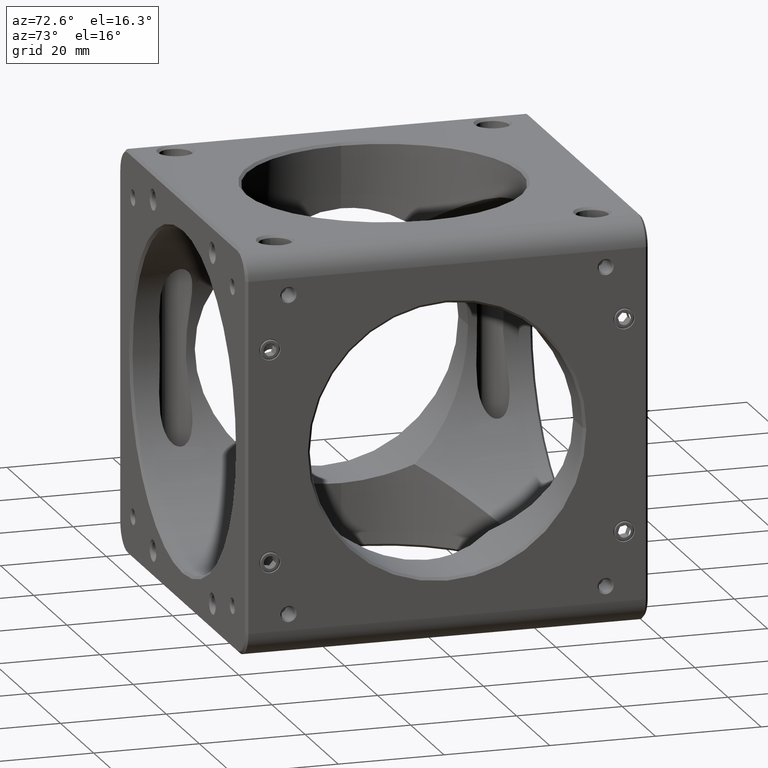
[diagram: clean part render]
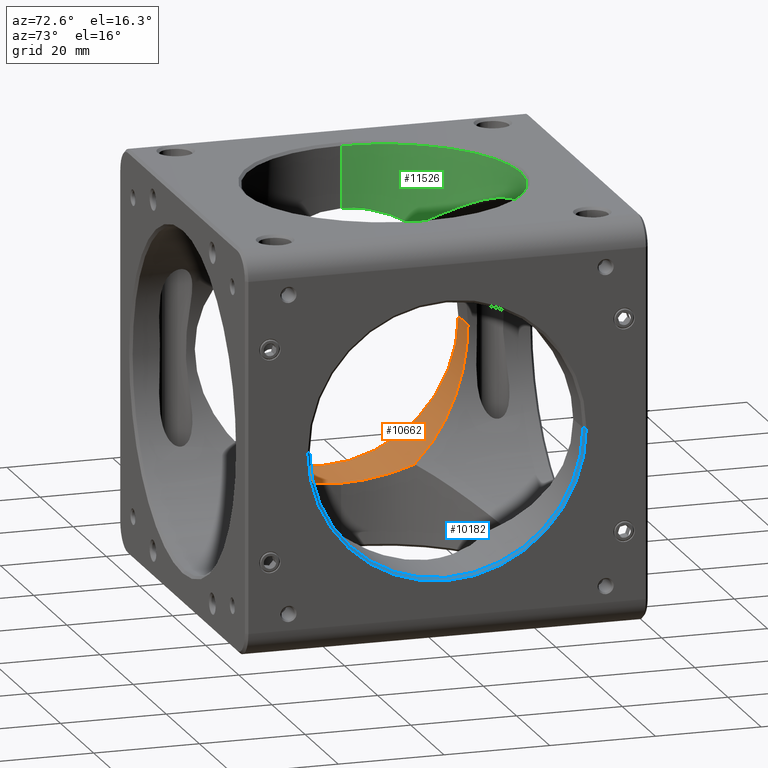
[diagram: same view with three faces highlighted in distinct colors, each labeled with its STEP entity id]
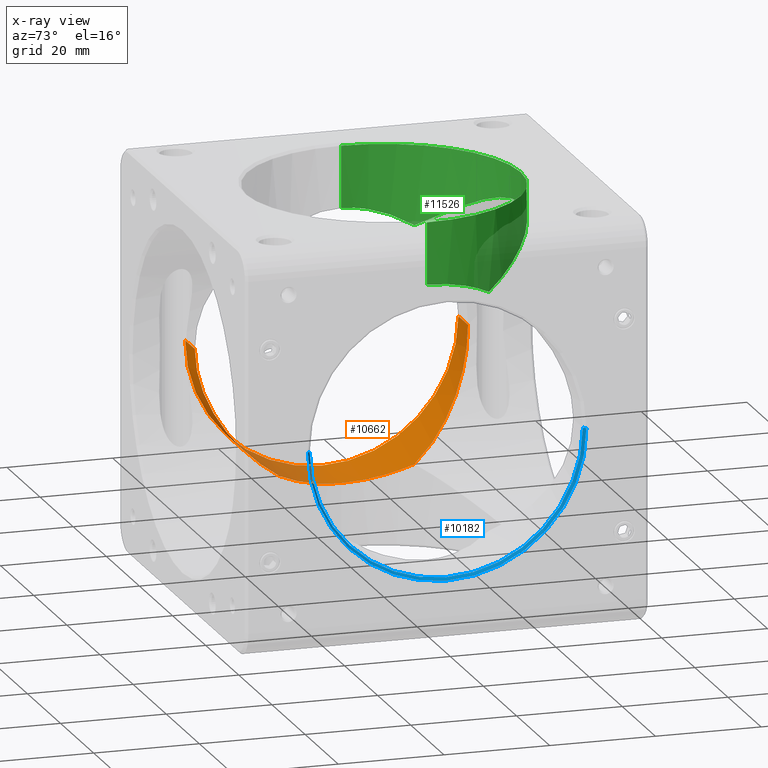
[diagram: x-ray of the same camera — body ghosted, the three highlighted faces saturated]
A machine part, auxiliary view with three faces highlighted in distinct colors.
The next image is the same camera in x-ray (body ghosted, the three faces saturated) — at least one of them is partly hidden behind the body in this view.
Their STEP definitions:

[orange] entity #10662 — the highlighted cylindrical surface (partial cylindrical patch) has radius 25.845 mm, axis along (1, 0, -0).
#14 = CARTESIAN_POINT ( 'NONE',  ( -29.80108422584668659, 23.40997574174339135, -10.96698080182598112 ) ) ;
#48 = EDGE_LOOP ( 'NONE', ( #6902, #9563, #1990, #595, #2496, #9173, #6217 ) ) ;
#51 = CARTESIAN_POINT ( 'NONE',  ( -37.60000000000003695, 25.84499999999998465, 3.195715822375015789E-15 ) ) ;
#253 = DIRECTION ( 'NONE',  ( 1.000000000000000000, 8.673617379884035472E-17, -0.0000000000000000000 ) ) ;
#281 = CARTESIAN_POINT ( 'NONE',  ( -25.84499999999999886, 4.515833756748953931, -25.84499999999998820 ) ) ;
#595 = ORIENTED_EDGE ( 'NONE', *, *, #5401, .T. ) ;
#774 = CARTESIAN_POINT ( 'NONE',  ( -26.80973857901472712, -19.46480864409625866, -17.03788305689619875 ) ) ;
#806 = CARTESIAN_POINT ( 'NONE',  ( -25.18910616588382823, 17.16694512655780969, -19.35021325873607267 ) ) ;
#817 = CARTESIAN_POINT ( 'NONE',  ( -26.28272207003479366, -18.73471214525936901, -17.83618791906743795 ) ) ;
#850 = CARTESIAN_POINT ( 'NONE',  ( -26.00364790434512940, 18.33491428855539240, -18.22327155906781471 ) ) ;
#972 = CARTESIAN_POINT ( 'NONE',  ( -31.06644955921520079, 25.00070451750736211, -6.578407921043935680 ) ) ;
#1035 = CARTESIAN_POINT ( 'NONE',  ( -25.84499999999999886, 0.0000000000000000000, -25.84499999999999886 ) ) ;
#1238 = CARTESIAN_POINT ( 'NONE',  ( -24.68778618224969179, 8.880877937350248885, -24.68778618224968469 ) ) ;
#1418 = EDGE_CURVE ( 'NONE', #10322, #5005, #10459, .T. ) ;
#1730 = CARTESIAN_POINT ( 'NONE',  ( -23.82094039402874230, -15.08136054625944311, -20.99539799501648574 ) ) ;
#1767 = CARTESIAN_POINT ( 'NONE',  ( -31.61007973371322777, 25.67296567477916369, -3.038372077861752452 ) ) ;
#1771 = EDGE_CURVE ( 'NONE', #6288, #5005, #5755, .T. ) ;
#1810 = CARTESIAN_POINT ( 'NONE',  ( -31.66236180193077132, 25.73727464214328364, -2.434445971920906615 ) ) ;
#1819 = CARTESIAN_POINT ( 'NONE',  ( -23.54194936592342202, -14.63739631445126399, -21.30735268938193627 ) ) ;
#1851 = CARTESIAN_POINT ( 'NONE',  ( -30.67443486768114624, 24.51244851248882384, -8.275898834087531242 ) ) ;
#1929 = CARTESIAN_POINT ( 'NONE',  ( -27.06500120650670738, 19.81084546910653899, -16.60709438983511887 ) ) ;
#1990 = ORIENTED_EDGE ( 'NONE', *, *, #6218, .T. ) ;
#2113 = CARTESIAN_POINT ( 'NONE',  ( -38.10000000000001563, 25.84499999999998465, 0.0000000000000000000 ) ) ;
#2203 = EDGE_CURVE ( 'NONE', #12131, #10322, #5366, .T. ) ;
#2496 = ORIENTED_EDGE ( 'NONE', *, *, #2203, .T. ) ;
#2613 = CARTESIAN_POINT ( 'NONE',  ( -38.10000000000001563, -25.84500000000001307, 3.165099652396334369E-15 ) ) ;
#2679 = CARTESIAN_POINT ( 'NONE',  ( -31.20369507796947062, -25.17160488747299851, -5.979155974851310340 ) ) ;
#2710 = CARTESIAN_POINT ( 'NONE',  ( -31.74557741855164750, 25.83956752821650582, -0.6113074955970804192 ) ) ;
#2843 = CARTESIAN_POINT ( 'NONE',  ( -30.35794380151485683, -24.11614080498363322, -9.365305828089397266 ) ) ;
#3095 = B_SPLINE_CURVE_WITH_KNOTS ( 'NONE', 3,
 ( #5564, #9359, #3751, #11220, #7516, #7437, #2679, #11262, #2843, #3791, #11177, #10179, #11140, #774, #817, #12117, #7352, #1730, #1819, #5515, #12070, #7390 ),
 .UNSPECIFIED., .F., .F.,
 ( 4, 2, 2, 2, 2, 2, 2, 2, 2, 2, 4 ),
 ( 0.08587225816773699782, 0.08767525058464645249, 0.08947824300155589328, 0.09308422783537478873, 0.09669021266919368418, 0.1002961975030125796, 0.1039021823368314751, 0.1075081671706503705, 0.1111141520044692660, 0.1129171444213787207, 0.1147201368382881614 ),
 .UNSPECIFIED. ) ;
#3223 = VERTEX_POINT ( 'NONE', #8005 ) ;
#3557 = CIRCLE ( 'NONE', #10423, 25.84499999999999886 ) ;
#3665 = CARTESIAN_POINT ( 'NONE',  ( -31.75000000000000000, 25.84499999999998465, 0.0000000000000000000 ) ) ;
#3751 = CARTESIAN_POINT ( 'NONE',  ( -31.73286768351305653, -25.82396237325450272, -1.206957470206748706 ) ) ;
#3791 = CARTESIAN_POINT ( 'NONE',  ( -29.62360340340134357, -23.18493851775056669, -11.47849408709906882 ) ) ;
#3872 = CARTESIAN_POINT ( 'NONE',  ( -22.45064030267286626, 12.80362351055353543, -22.45064030267289468 ) ) ;
#3901 = CARTESIAN_POINT ( 'NONE',  ( -22.45064030267287691, -12.80362351055358161, -22.45064030267288047 ) ) ;
#3984 = CARTESIAN_POINT ( 'NONE',  ( -25.84500000000000242, -4.515833756748983241, -25.84499999999999176 ) ) ;
#3994 = CARTESIAN_POINT ( 'NONE',  ( -26.27367877284450870, 18.71559830637246336, -17.83228939034581373 ) ) ;
#4245 = CARTESIAN_POINT ( 'NONE',  ( -38.10000000000001563, -1.354819034737886499E-14, 0.0000000000000000000 ) ) ;
#4283 = DIRECTION ( 'NONE',  ( 0.0000000000000000000, 1.000000000000000000, 0.0000000000000000000 ) ) ;
#4612 = CARTESIAN_POINT ( 'NONE',  ( -31.47131118450240095, 25.50191078014481860, -4.240921831801783171 ) ) ;
#4625 = VERTEX_POINT ( 'NONE', #11631 ) ;
#4765 = CARTESIAN_POINT ( 'NONE',  ( -24.68778618224968469, -8.880877937350282636, -24.68778618224967758 ) ) ;
#4949 = CARTESIAN_POINT ( 'NONE',  ( -25.84499999999999886, 0.0000000000000000000, -25.84499999999999886 ) ) ;
#4991 = CARTESIAN_POINT ( 'NONE',  ( -22.45064030267286626, 12.80362351055353543, -22.45064030267289468 ) ) ;
#5005 = VERTEX_POINT ( 'NONE', #7149 ) ;
#5366 =( BOUNDED_CURVE ( )  B_SPLINE_CURVE ( 3, ( #4949, #281, #1238, #4991 ),
 .UNSPECIFIED., .F., .F. ) 
 B_SPLINE_CURVE_WITH_KNOTS ( ( 4, 4 ),
 ( 3.141592653589793116, 3.659888369675483144 ),
 .UNSPECIFIED. ) 
 CURVE ( )  GEOMETRIC_REPRESENTATION_ITEM ( )  RATIONAL_B_SPLINE_CURVE ( ( 1.000000000000000000, 0.9777391309083933724, 0.9777391309083933724, 1.000000000000000000 ) ) 
 REPRESENTATION_ITEM ( '' )  );
#5401 = EDGE_CURVE ( 'NONE', #4625, #12131, #8575, .T. ) ;
#5515 = CARTESIAN_POINT ( 'NONE',  ( -22.99056129754822209, -13.73302223456043869, -21.90115864060829765 ) ) ;
#5564 = CARTESIAN_POINT ( 'NONE',  ( -31.75000000000000000, -25.84500000000001307, 3.165099907590964847E-15 ) ) ;
#5699 = EDGE_CURVE ( 'NONE', #9313, #3223, #6657, .T. ) ;
#5755 = LINE ( 'NONE', #2113, #10436 ) ;
#5864 = CYLINDRICAL_SURFACE ( 'NONE', #11641, 25.84499999999999886 ) ;
#6217 = ORIENTED_EDGE ( 'NONE', *, *, #1771, .F. ) ;
#6218 = EDGE_CURVE ( 'NONE', #3223, #4625, #3095, .T. ) ;
#6268 = DIRECTION ( 'NONE',  ( 1.000000000000000000, 8.673617379884035472E-17, -0.0000000000000000000 ) ) ;
#6288 = VERTEX_POINT ( 'NONE', #51 ) ;
#6603 = CARTESIAN_POINT ( 'NONE',  ( -22.98737391121697726, 13.74476436601895024, -21.91390669412879078 ) ) ;
#6657 = LINE ( 'NONE', #2613, #11805 ) ;
#6902 = ORIENTED_EDGE ( 'NONE', *, *, #8497, .T. ) ;
#7149 = CARTESIAN_POINT ( 'NONE',  ( -31.75000000000000000, 25.84499999999998465, 0.0000000000000000000 ) ) ;
#7352 = CARTESIAN_POINT ( 'NONE',  ( -24.65294639730725379, -16.37388560330456855, -20.02549591974057108 ) ) ;
#7379 = CARTESIAN_POINT ( 'NONE',  ( -28.97706381268278975, 22.35188379087410837, -12.98731663105711576 ) ) ;
#7390 = CARTESIAN_POINT ( 'NONE',  ( -22.45064030267287691, -12.80362351055358161, -22.45064030267288047 ) ) ;
#7425 = CARTESIAN_POINT ( 'NONE',  ( -30.35605748890128908, 24.11379323212142012, -9.372269175873704228 ) ) ;
#7437 = CARTESIAN_POINT ( 'NONE',  ( -31.40558761019100231, -25.42090096508790609, -4.815888421346260273 ) ) ;
#7469 = CARTESIAN_POINT ( 'NONE',  ( -23.53702289668455805, 14.63974223041835465, -21.32568318022507015 ) ) ;
#7509 = CARTESIAN_POINT ( 'NONE',  ( -24.63779543599862265, 16.35088895687803046, -20.04383311635460174 ) ) ;
#7516 = CARTESIAN_POINT ( 'NONE',  ( -31.61108539494519931, -25.67420265130689572, -3.026893417440124523 ) ) ;
#7546 = CARTESIAN_POINT ( 'NONE',  ( -31.18283235845020940, 25.14509912831195848, -6.003727197645441827 ) ) ;
#8005 = CARTESIAN_POINT ( 'NONE',  ( -31.75000000000000000, -25.84500000000001307, 3.165099907590964847E-15 ) ) ;
#8145 = DIRECTION ( 'NONE',  ( 1.000000000000000000, 8.673617379884035472E-17, -0.0000000000000000000 ) ) ;
#8254 = CARTESIAN_POINT ( 'NONE',  ( -37.60000000000003695, -1.350482226047944481E-14, 0.0000000000000000000 ) ) ;
#8321 = CARTESIAN_POINT ( 'NONE',  ( -31.72799318232459598, 25.81796110822155654, -1.220586381127175546 ) ) ;
#8400 = CARTESIAN_POINT ( 'NONE',  ( -31.38517527013375741, 25.39559416541459669, -4.835757171523686893 ) ) ;
#8481 = CARTESIAN_POINT ( 'NONE',  ( -29.19234530911510106, 22.63011369529780126, -12.49666064361249518 ) ) ;
#8489 = FACE_OUTER_BOUND ( 'NONE', #48, .T. ) ;
#8497 = EDGE_CURVE ( 'NONE', #6288, #9313, #3557, .T. ) ;
#8575 =( BOUNDED_CURVE ( )  B_SPLINE_CURVE ( 3, ( #3901, #4765, #3984, #11323 ),
 .UNSPECIFIED., .F., .F. ) 
 B_SPLINE_CURVE_WITH_KNOTS ( ( 4, 4 ),
 ( 2.623296937504102200, 3.141592653589793116 ),
 .UNSPECIFIED. ) 
 CURVE ( )  GEOMETRIC_REPRESENTATION_ITEM ( )  RATIONAL_B_SPLINE_CURVE ( ( 1.000000000000000000, 0.9777391309083932613, 0.9777391309083932613, 1.000000000000000000 ) ) 
 REPRESENTATION_ITEM ( '' )  );
#9173 = ORIENTED_EDGE ( 'NONE', *, *, #1418, .T. ) ;
#9269 = CARTESIAN_POINT ( 'NONE',  ( -26.80500198953824764, 19.45444821540877101, -17.02317859568271530 ) ) ;
#9313 = VERTEX_POINT ( 'NONE', #10694 ) ;
#9359 = CARTESIAN_POINT ( 'NONE',  ( -31.74999999999999289, -25.84500000000000952, -0.6024649619294979441 ) ) ;
#9392 = CARTESIAN_POINT ( 'NONE',  ( -28.30610231338615890, 21.47735505972951486, -14.42010935265777505 ) ) ;
#9563 = ORIENTED_EDGE ( 'NONE', *, *, #5699, .T. ) ;
#9596 = CARTESIAN_POINT ( 'NONE',  ( -31.71483148227369853, 25.80178709859464803, -1.524552251522689694 ) ) ;
#10179 = CARTESIAN_POINT ( 'NONE',  ( -28.31275796880968798, -21.48615325696285794, -14.40750770714116413 ) ) ;
#10322 = VERTEX_POINT ( 'NONE', #3872 ) ;
#10330 = CARTESIAN_POINT ( 'NONE',  ( -29.60405805035386706, 23.15878395478078744, -11.48735386586078633 ) ) ;
#10423 = AXIS2_PLACEMENT_3D ( 'NONE', #8254, #10466, #10554 ) ;
#10436 = VECTOR ( 'NONE', #253, 1000.000000000000000 ) ;
#10459 = B_SPLINE_CURVE_WITH_KNOTS ( 'NONE', 3,
 ( #11252, #6603, #7469, #7509, #806, #850, #3994, #9269, #1929, #12105, #9392, #7379, #8481, #10330, #14, #7425, #1851, #972, #7546, #8400, #4612, #1767, #1810, #9596, #8321, #2710, #10540, #3665 ),
 .UNSPECIFIED., .F., .F.,
 ( 4, 2, 2, 2, 2, 2, 2, 2, 2, 2, 2, 2, 2, 4 ),
 ( 0.1426913864351759265, 0.1462891665683608566, 0.1498869467015457591, 0.1516858367681382103, 0.1534847268347306892, 0.1570825069679155916, 0.1588813970345080151, 0.1606802871011004663, 0.1642780672342853687, 0.1660769573008778199, 0.1678758473674702434, 0.1696747374340626946, 0.1705741824673589202, 0.1714736275006551458 ),
 .UNSPECIFIED. ) ;
#10466 = DIRECTION ( 'NONE',  ( -1.000000000000000000, -8.673617379883828396E-17, -0.0000000000000000000 ) ) ;
#10540 = CARTESIAN_POINT ( 'NONE',  ( -31.75000000000000711, 25.84499999999999531, -0.3048629228592948937 ) ) ;
#10554 = DIRECTION ( 'NONE',  ( 0.0000000000000000000, 1.000000000000000000, 0.0000000000000000000 ) ) ;
#10662 = ADVANCED_FACE ( 'NONE', ( #8489 ), #5864, .F. ) ;
#10694 = CARTESIAN_POINT ( 'NONE',  ( -37.60000000000003695, -25.84500000000001307, 0.0000000000000000000 ) ) ;
#11140 = CARTESIAN_POINT ( 'NONE',  ( -27.82349198793041012, -20.83898748208756402, -15.32660547326618250 ) ) ;
#11177 = CARTESIAN_POINT ( 'NONE',  ( -29.21155924178200181, -22.65739859995933614, -12.48492486143143054 ) ) ;
#11220 = CARTESIAN_POINT ( 'NONE',  ( -31.66346026858231255, -25.73862578724838812, -2.420107760853800638 ) ) ;
#11252 = CARTESIAN_POINT ( 'NONE',  ( -22.45064030267286626, 12.80362351055353543, -22.45064030267289468 ) ) ;
#11262 = CARTESIAN_POINT ( 'NONE',  ( -30.68132924100104120, -24.52107399945737143, -8.250874420071514947 ) ) ;
#11323 = CARTESIAN_POINT ( 'NONE',  ( -25.84499999999999886, 0.0000000000000000000, -25.84499999999999886 ) ) ;
#11631 = CARTESIAN_POINT ( 'NONE',  ( -22.45064030267287691, -12.80362351055358161, -22.45064030267288047 ) ) ;
#11641 = AXIS2_PLACEMENT_3D ( 'NONE', #4245, #6268, #4283 ) ;
#11805 = VECTOR ( 'NONE', #8145, 1000.000000000000000 ) ;
#12070 = CARTESIAN_POINT ( 'NONE',  ( -22.71814682871328017, -13.27268547491082451, -22.18313377663247010 ) ) ;
#12105 = CARTESIAN_POINT ( 'NONE',  ( -27.82534590997393664, 20.84146183884763204, -15.32325430562022106 ) ) ;
#12117 = CARTESIAN_POINT ( 'NONE',  ( -25.20439476490140862, -17.18922555614487280, -19.33001716062330644 ) ) ;
#12131 = VERTEX_POINT ( 'NONE', #1035 ) ;

[blue] entity #10182 — the highlighted conical surface has half-angle 45 deg.
#260 = CARTESIAN_POINT ( 'NONE',  ( 37.59999999999998721, -6.982261990806649344E-15, 0.0000000000000000000 ) ) ;
#286 = LINE ( 'NONE', #1519, #10002 ) ;
#433 = AXIS2_PLACEMENT_3D ( 'NONE', #9113, #11016, #7344 ) ;
#477 = EDGE_CURVE ( 'NONE', #4038, #5488, #3224, .T. ) ;
#627 = AXIS2_PLACEMENT_3D ( 'NONE', #260, #10534, #9514 ) ;
#895 = EDGE_CURVE ( 'NONE', #3083, #4038, #4807, .T. ) ;
#993 = ORIENTED_EDGE ( 'NONE', *, *, #895, .F. ) ;
#1519 = CARTESIAN_POINT ( 'NONE',  ( 37.59999999999998721, -25.84500000000000597, 3.165099652396334369E-15 ) ) ;
#1537 = DIRECTION ( 'NONE',  ( 0.0000000000000000000, 1.000000000000000000, 0.0000000000000000000 ) ) ;
#2033 = AXIS2_PLACEMENT_3D ( 'NONE', #3447, #11954, #1537 ) ;
#2383 = ORIENTED_EDGE ( 'NONE', *, *, #11825, .F. ) ;
#3083 = VERTEX_POINT ( 'NONE', #5840 ) ;
#3218 = CARTESIAN_POINT ( 'NONE',  ( 38.10000000000000853, -26.34500000000001663, 3.226331992353703521E-15 ) ) ;
#3224 = CIRCLE ( 'NONE', #433, 26.34500000000000242 ) ;
#3258 = CONICAL_SURFACE ( 'NONE', #2033, 25.84499999999999886, 0.7853981633974415066 ) ;
#3447 = CARTESIAN_POINT ( 'NONE',  ( 37.59999999999998721, -6.982261990806649344E-15, 0.0000000000000000000 ) ) ;
#4038 = VERTEX_POINT ( 'NONE', #11782 ) ;
#4685 = VERTEX_POINT ( 'NONE', #8957 ) ;
#4807 = LINE ( 'NONE', #11776, #7872 ) ;
#4963 = CIRCLE ( 'NONE', #627, 25.84499999999999886 ) ;
#5488 = VERTEX_POINT ( 'NONE', #3218 ) ;
#5534 = EDGE_LOOP ( 'NONE', ( #2383, #8082, #10055, #993 ) ) ;
#5840 = CARTESIAN_POINT ( 'NONE',  ( 37.59999999999998721, 25.84499999999999176, 0.0000000000000000000 ) ) ;
#6271 = DIRECTION ( 'NONE',  ( 0.7071067811865525687, -0.7071067811865425767, 8.659560562354873694E-17 ) ) ;
#7344 = DIRECTION ( 'NONE',  ( 2.633856103210183447E-16, -1.000000000000000000, 0.0000000000000000000 ) ) ;
#7872 = VECTOR ( 'NONE', #11816, 1000.000000000000114 ) ;
#8082 = ORIENTED_EDGE ( 'NONE', *, *, #9126, .T. ) ;
#8957 = CARTESIAN_POINT ( 'NONE',  ( 37.59999999999998721, -25.84500000000000597, 3.195715822375018550E-15 ) ) ;
#9102 = FACE_OUTER_BOUND ( 'NONE', #5534, .T. ) ;
#9113 = CARTESIAN_POINT ( 'NONE',  ( 38.10000000000000142, -6.938893903907227589E-15, 0.0000000000000000000 ) ) ;
#9126 = EDGE_CURVE ( 'NONE', #4685, #5488, #286, .T. ) ;
#9514 = DIRECTION ( 'NONE',  ( 0.0000000000000000000, -1.000000000000000000, 0.0000000000000000000 ) ) ;
#10002 = VECTOR ( 'NONE', #6271, 1000.000000000000000 ) ;
#10055 = ORIENTED_EDGE ( 'NONE', *, *, #477, .F. ) ;
#10182 = ADVANCED_FACE ( 'NONE', ( #9102 ), #3258, .F. ) ;
#10534 = DIRECTION ( 'NONE',  ( 1.000000000000000000, 8.673617379883977540E-17, 0.0000000000000000000 ) ) ;
#11016 = DIRECTION ( 'NONE',  ( -1.000000000000000000, -1.821231995776175479E-16, 0.0000000000000000000 ) ) ;
#11776 = CARTESIAN_POINT ( 'NONE',  ( 37.59999999999998721, 25.84499999999999176, 0.0000000000000000000 ) ) ;
#11782 = CARTESIAN_POINT ( 'NONE',  ( 38.09999999999999432, 26.34499999999999531, 0.0000000000000000000 ) ) ;
#11816 = DIRECTION ( 'NONE',  ( 0.7071067811865522357, 0.7071067811865426878, 0.0000000000000000000 ) ) ;
#11825 = EDGE_CURVE ( 'NONE', #4685, #3083, #4963, .T. ) ;
#11954 = DIRECTION ( 'NONE',  ( 1.000000000000000000, 8.673617379883977540E-17, 0.0000000000000000000 ) ) ;

[green] entity #11526 — the highlighted cylindrical surface (partial cylindrical patch) has radius 25.845 mm, axis along (-0, -0, -1).
#447 = CARTESIAN_POINT ( 'NONE',  ( -25.84499999999999886, 0.0000000000000000000, 38.10000000000000142 ) ) ;
#471 = AXIS2_PLACEMENT_3D ( 'NONE', #617, #10938, #4613 ) ;
#510 = ORIENTED_EDGE ( 'NONE', *, *, #2568, .T. ) ;
#596 = CARTESIAN_POINT ( 'NONE',  ( 0.0000000000000000000, 0.0000000000000000000, 37.60000000000006537 ) ) ;
#617 = CARTESIAN_POINT ( 'NONE',  ( 0.0000000000000000000, 0.0000000000000000000, 38.10000000000000142 ) ) ;
#654 = CARTESIAN_POINT ( 'NONE',  ( -7.688962224019891600, 24.68180839699524398, 30.81040016890560551 ) ) ;
#775 = CARTESIAN_POINT ( 'NONE',  ( 25.84500000000000597, 4.515833756748967254, 25.84500000000000242 ) ) ;
#893 = CARTESIAN_POINT ( 'NONE',  ( -0.6030113382820280199, 25.84500000000000242, 31.75000000000001421 ) ) ;
#1226 = CARTESIAN_POINT ( 'NONE',  ( 9.335434536426292951, 24.12805042232672648, 30.36739620683913898 ) ) ;
#1439 = CARTESIAN_POINT ( 'NONE',  ( 18.20368231813494475, 18.35431712406511195, 26.01734590773811817 ) ) ;
#1522 = CARTESIAN_POINT ( 'NONE',  ( 22.45064030267288757, 12.80362351055355674, 22.45064030267288757 ) ) ;
#1525 = EDGE_CURVE ( 'NONE', #1926, #10661, #2924, .T. ) ;
#1534 = CARTESIAN_POINT ( 'NONE',  ( -22.45064030267287691, 12.80362351055357450, 22.45064030267290178 ) ) ;
#1575 = CARTESIAN_POINT ( 'NONE',  ( -12.49420688565798265, 22.65198967103243177, 29.20738749243578525 ) ) ;
#1615 = VERTEX_POINT ( 'NONE', #4684 ) ;
#1761 = ORIENTED_EDGE ( 'NONE', *, *, #4381, .T. ) ;
#1926 = VERTEX_POINT ( 'NONE', #8179 ) ;
#2127 = CARTESIAN_POINT ( 'NONE',  ( 4.793307906017560072, 25.40366024744986007, 31.39170349068861299 ) ) ;
#2172 = CARTESIAN_POINT ( 'NONE',  ( 10.93046662764240118, 23.42704007858346316, 29.81449390638315222 ) ) ;
#2365 = VERTEX_POINT ( 'NONE', #9869 ) ;
#2389 = CARTESIAN_POINT ( 'NONE',  ( 20.02466232403845225, 16.37477505168650183, 24.65357233149532235 ) ) ;
#2568 = EDGE_CURVE ( 'NONE', #1615, #1926, #3632, .T. ) ;
#2712 = CARTESIAN_POINT ( 'NONE',  ( -1.206946209193123565, 25.82392270930590072, 31.73283547811145411 ) ) ;
#2924 = B_SPLINE_CURVE_WITH_KNOTS ( 'NONE', 3,
 ( #7866, #8812, #10713, #11532, #2127, #6860, #8687, #3091, #1226, #2172, #8723, #9682, #10625, #8984, #9896, #7146, #5147, #7996, #1439, #3318, #2389, #9021, #11783, #1522 ),
 .UNSPECIFIED., .F., .F.,
 ( 4, 2, 2, 2, 2, 2, 2, 2, 2, 2, 2, 4 ),
 ( 0.04304464871771874340, 0.04665974599763529629, 0.04846729463759356926, 0.05027484327755184917, 0.05388994055746840206, 0.05569748919742668197, 0.05750503783738495495, 0.06112013511730149395, 0.06292768375725975305, 0.06473523239721802602, 0.06835032967713454422, 0.07196542695705106241 ),
 .UNSPECIFIED. ) ;
#3091 = CARTESIAN_POINT ( 'NONE',  ( 8.238362102897522021, 24.52513167385252402, 30.68457724993902502 ) ) ;
#3311 = CARTESIAN_POINT ( 'NONE',  ( 22.45064030267288757, 12.80362351055355674, 22.45064030267288757 ) ) ;
#3318 = CARTESIAN_POINT ( 'NONE',  ( 19.32865632433934877, 17.19101503160560895, 25.20557273274066645 ) ) ;
#3373 = DIRECTION ( 'NONE',  ( -0.0000000000000000000, -0.0000000000000000000, -1.000000000000000000 ) ) ;
#3480 = CARTESIAN_POINT ( 'NONE',  ( -9.897202636066174009, 23.88191161807583285, 30.17322445336557024 ) ) ;
#3632 = B_SPLINE_CURVE_WITH_KNOTS ( 'NONE', 3,
 ( #1534, #9033, #6283, #5400, #4379, #10941, #10982, #5320, #11873, #6244, #7197, #1575, #8129, #3480, #4464, #5357, #654, #7234, #11021, #8366, #7470, #2712, #893, #3745 ),
 .UNSPECIFIED., .F., .F.,
 ( 4, 2, 2, 2, 2, 2, 2, 2, 2, 2, 2, 4 ),
 ( 0.01405118284760461730, 0.01767536608136888523, 0.02129954931513315664, 0.02311164093201528713, 0.02492373254889741763, 0.02854791578266168556, 0.03217209901642595349, 0.03398419063330808398, 0.03579628225019021448, 0.03942046548395448241, 0.04123255710083661291, 0.04304464871771874340 ),
 .UNSPECIFIED. ) ;
#3669 = EDGE_CURVE ( 'NONE', #11088, #2365, #7436, .T. ) ;
#3677 = CARTESIAN_POINT ( 'NONE',  ( 25.84499999999999886, 3.165099652396333975E-15, 25.84500000000000952 ) ) ;
#3745 = CARTESIAN_POINT ( 'NONE',  ( 4.961947715614647792E-20, 25.84499999999999886, 31.75000000000000711 ) ) ;
#3818 = ORIENTED_EDGE ( 'NONE', *, *, #3669, .T. ) ;
#4379 = CARTESIAN_POINT ( 'NONE',  ( -19.34288749091300375, 17.17494502539863888, 25.19460975910912381 ) ) ;
#4381 = EDGE_CURVE ( 'NONE', #12015, #11088, #9314, .T. ) ;
#4464 = CARTESIAN_POINT ( 'NONE',  ( -9.351178390692838960, 24.10111157733373943, 30.34711645161839044 ) ) ;
#4491 = ORIENTED_EDGE ( 'NONE', *, *, #1525, .T. ) ;
#4613 = DIRECTION ( 'NONE',  ( -1.000000000000000000, 0.0000000000000000000, 0.0000000000000000000 ) ) ;
#4670 = CYLINDRICAL_SURFACE ( 'NONE', #471, 25.84499999999999886 ) ;
#4684 = CARTESIAN_POINT ( 'NONE',  ( -22.45064030267287691, 12.80362351055357450, 22.45064030267290178 ) ) ;
#4799 = VECTOR ( 'NONE', #6116, 1000.000000000000000 ) ;
#4836 = CARTESIAN_POINT ( 'NONE',  ( -25.84499999999999886, 0.0000000000000000000, 37.60000000000006537 ) ) ;
#5132 = EDGE_LOOP ( 'NONE', ( #11305, #1761, #3818, #7385, #510, #4491, #6982 ) ) ;
#5147 = CARTESIAN_POINT ( 'NONE',  ( 17.00941972275156999, 19.46640336726955312, 26.81369516619455240 ) ) ;
#5215 = AXIS2_PLACEMENT_3D ( 'NONE', #596, #10914, #11961 ) ;
#5320 = CARTESIAN_POINT ( 'NONE',  ( -17.02547200056618593, 19.45238474709340082, 26.80351324315472539 ) ) ;
#5357 = CARTESIAN_POINT ( 'NONE',  ( -8.248086653162880921, 24.50055475126160687, 30.66530744643798201 ) ) ;
#5400 = CARTESIAN_POINT ( 'NONE',  ( -20.03614703817829934, 16.36037875408973008, 24.64408609627548685 ) ) ;
#5696 = CARTESIAN_POINT ( 'NONE',  ( -25.84500000000000242, 4.515833756748967254, 25.84500000000000597 ) ) ;
#5768 = CARTESIAN_POINT ( 'NONE',  ( 25.84499999999999886, 3.165099652396333975E-15, 25.84500000000000952 ) ) ;
#5777 = CARTESIAN_POINT ( 'NONE',  ( -24.68778618224968469, 8.880877937350268425, 24.68778618224969179 ) ) ;
#6116 = DIRECTION ( 'NONE',  ( -0.0000000000000000000, -0.0000000000000000000, -1.000000000000000000 ) ) ;
#6244 = CARTESIAN_POINT ( 'NONE',  ( -15.31357399152989807, 20.84895969359013179, 27.83091347407599869 ) ) ;
#6283 = CARTESIAN_POINT ( 'NONE',  ( -21.32005843994131666, 14.64801314957966483, 23.54215953929517013 ) ) ;
#6309 = LINE ( 'NONE', #9039, #6743 ) ;
#6743 = VECTOR ( 'NONE', #3373, 1000.000000000000000 ) ;
#6860 = CARTESIAN_POINT ( 'NONE',  ( 5.963330291083092760, 25.15473010169669621, 31.19060019571045927 ) ) ;
#6982 = ORIENTED_EDGE ( 'NONE', *, *, #11273, .F. ) ;
#7014 =( BOUNDED_CURVE ( )  B_SPLINE_CURVE ( 3, ( #10313, #5777, #5696, #9451 ),
 .UNSPECIFIED., .F., .F. ) 
 B_SPLINE_CURVE_WITH_KNOTS ( ( 4, 4 ),
 ( 2.623296937504102200, 3.141592653589793116 ),
 .UNSPECIFIED. ) 
 CURVE ( )  GEOMETRIC_REPRESENTATION_ITEM ( )  RATIONAL_B_SPLINE_CURVE ( ( 1.000000000000000000, 0.9777391309083932613, 0.9777391309083932613, 1.000000000000000000 ) ) 
 REPRESENTATION_ITEM ( '' )  );
#7146 = CARTESIAN_POINT ( 'NONE',  ( 16.59116741803605422, 19.82428397739091608, 27.07482973920787472 ) ) ;
#7166 =( BOUNDED_CURVE ( )  B_SPLINE_CURVE ( 3, ( #3677, #775, #7311, #9236 ),
 .UNSPECIFIED., .F., .F. ) 
 B_SPLINE_CURVE_WITH_KNOTS ( ( 4, 4 ),
 ( 0.0000000000000000000, 0.5182957160856906942 ),
 .UNSPECIFIED. ) 
 CURVE ( )  GEOMETRIC_REPRESENTATION_ITEM ( )  RATIONAL_B_SPLINE_CURVE ( ( 1.000000000000000000, 0.9777391309083933724, 0.9777391309083933724, 1.000000000000000000 ) ) 
 REPRESENTATION_ITEM ( '' )  );
#7197 = CARTESIAN_POINT ( 'NONE',  ( -14.40651589955395551, 21.48651068447556156, 28.31305334065573476 ) ) ;
#7234 = CARTESIAN_POINT ( 'NONE',  ( -5.988274261424591849, 25.16934086708507934, 31.20186959097119583 ) ) ;
#7311 = CARTESIAN_POINT ( 'NONE',  ( 24.68778618224969534, 8.880877937350264872, 24.68778618224969179 ) ) ;
#7385 = ORIENTED_EDGE ( 'NONE', *, *, #12142, .F. ) ;
#7436 = LINE ( 'NONE', #447, #4799 ) ;
#7470 = CARTESIAN_POINT ( 'NONE',  ( -2.416692140556045754, 25.73890639374301870, 31.66368844166058594 ) ) ;
#7602 = FACE_OUTER_BOUND ( 'NONE', #5132, .T. ) ;
#7866 = CARTESIAN_POINT ( 'NONE',  ( 4.961947715614647792E-20, 25.84499999999999886, 31.75000000000000711 ) ) ;
#7996 = CARTESIAN_POINT ( 'NONE',  ( 17.81514527074440934, 18.73183969460144027, 26.28526596313242436 ) ) ;
#8129 = CARTESIAN_POINT ( 'NONE',  ( -11.48904380758748722, 23.17997169107630029, 29.61970202614241288 ) ) ;
#8179 = CARTESIAN_POINT ( 'NONE',  ( 4.961947715614647792E-20, 25.84499999999999886, 31.75000000000000711 ) ) ;
#8310 = VERTEX_POINT ( 'NONE', #5768 ) ;
#8366 = CARTESIAN_POINT ( 'NONE',  ( -3.025589438624887606, 25.67442728759290560, 31.61126741895111536 ) ) ;
#8687 = CARTESIAN_POINT ( 'NONE',  ( 6.538847910965796650, 25.01109074364458351, 31.07480998789441529 ) ) ;
#8723 = CARTESIAN_POINT ( 'NONE',  ( 11.45022535469884772, 23.17716669494526727, 29.61844388140274376 ) ) ;
#8812 = CARTESIAN_POINT ( 'NONE',  ( 1.202999135624815530, 25.84499999999999886, 31.75000000000001421 ) ) ;
#8984 = CARTESIAN_POINT ( 'NONE',  ( 14.38992217631474091, 21.49773197850964479, 28.32156959283614484 ) ) ;
#9021 = CARTESIAN_POINT ( 'NONE',  ( 21.31570326424330375, 14.65473143854323368, 23.54626348800940150 ) ) ;
#9033 = CARTESIAN_POINT ( 'NONE',  ( -21.91072076717521000, 13.75035076115207566, 22.99055983817058291 ) ) ;
#9039 = CARTESIAN_POINT ( 'NONE',  ( 25.84499999999999886, 3.165099652396333580E-15, 38.10000000000000142 ) ) ;
#9236 = CARTESIAN_POINT ( 'NONE',  ( 22.45064030267288757, 12.80362351055355674, 22.45064030267288757 ) ) ;
#9314 = CIRCLE ( 'NONE', #5215, 25.84499999999999886 ) ;
#9451 = CARTESIAN_POINT ( 'NONE',  ( -25.84499999999999886, 0.0000000000000000000, 25.84500000000001307 ) ) ;
#9682 = CARTESIAN_POINT ( 'NONE',  ( 12.46059894404350032, 22.64999317073562324, 29.20776185511128631 ) ) ;
#9869 = CARTESIAN_POINT ( 'NONE',  ( -25.84499999999999886, 0.0000000000000000000, 25.84500000000001307 ) ) ;
#9896 = CARTESIAN_POINT ( 'NONE',  ( 15.29808671365629991, 20.86031528859532003, 27.83943263974739679 ) ) ;
#10105 = EDGE_CURVE ( 'NONE', #12015, #8310, #6309, .T. ) ;
#10313 = CARTESIAN_POINT ( 'NONE',  ( -22.45064030267287691, 12.80362351055357450, 22.45064030267290178 ) ) ;
#10625 = CARTESIAN_POINT ( 'NONE',  ( 12.95237428408358760, 22.37218371706410025, 28.99272609665352718 ) ) ;
#10661 = VERTEX_POINT ( 'NONE', #3311 ) ;
#10713 = CARTESIAN_POINT ( 'NONE',  ( 2.402334136292055611, 25.76141758859072439, 31.68184740729988746 ) ) ;
#10914 = DIRECTION ( 'NONE',  ( -0.0000000000000000000, -0.0000000000000000000, 1.000000000000000000 ) ) ;
#10938 = DIRECTION ( 'NONE',  ( -0.0000000000000000000, -0.0000000000000000000, -1.000000000000000000 ) ) ;
#10941 = CARTESIAN_POINT ( 'NONE',  ( -18.21984667237212108, 18.33825821235884135, 26.00601808399796866 ) ) ;
#10982 = CARTESIAN_POINT ( 'NONE',  ( -17.83158714638664222, 18.71620872484151832, 26.27412260873524730 ) ) ;
#11021 = CARTESIAN_POINT ( 'NONE',  ( -4.823527408755972523, 25.41973918680195510, 31.40464552373124718 ) ) ;
#11088 = VERTEX_POINT ( 'NONE', #4836 ) ;
#11273 = EDGE_CURVE ( 'NONE', #8310, #10661, #7166, .T. ) ;
#11305 = ORIENTED_EDGE ( 'NONE', *, *, #10105, .F. ) ;
#11526 = ADVANCED_FACE ( 'NONE', ( #7602 ), #4670, .F. ) ;
#11532 = CARTESIAN_POINT ( 'NONE',  ( 4.195801804806023050, 25.50928708007778312, 31.47729004100009575 ) ) ;
#11783 = CARTESIAN_POINT ( 'NONE',  ( 21.91319040617845459, 13.74602034821125152, 22.98809019916733121 ) ) ;
#11812 = CARTESIAN_POINT ( 'NONE',  ( 25.84499999999999886, 3.165099652396333580E-15, 37.60000000000006537 ) ) ;
#11873 = CARTESIAN_POINT ( 'NONE',  ( -16.60611924818093144, 19.81176391541012549, 27.06566093436638809 ) ) ;
#11961 = DIRECTION ( 'NONE',  ( 1.000000000000000000, 0.0000000000000000000, 0.0000000000000000000 ) ) ;
#12015 = VERTEX_POINT ( 'NONE', #11812 ) ;
#12142 = EDGE_CURVE ( 'NONE', #1615, #2365, #7014, .T. ) ;